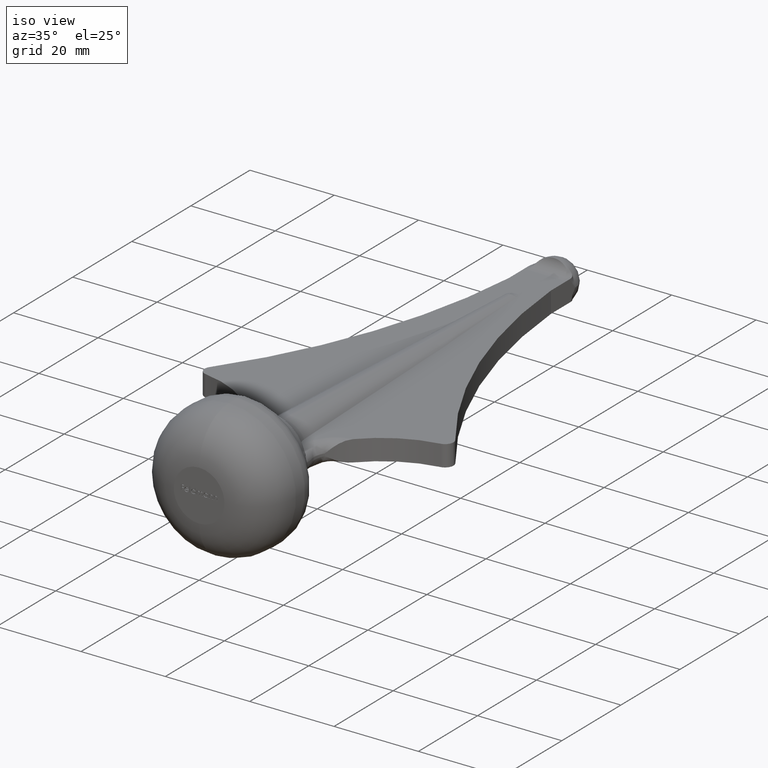
[diagram: clean part render]
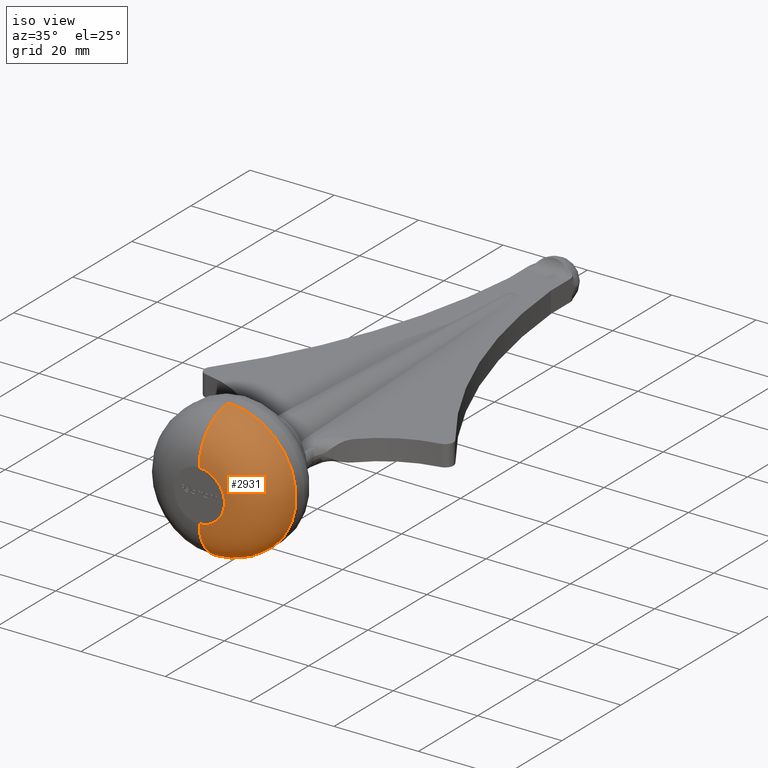
[diagram: tour spotlight — one face highlighted and labeled with its STEP entity id]
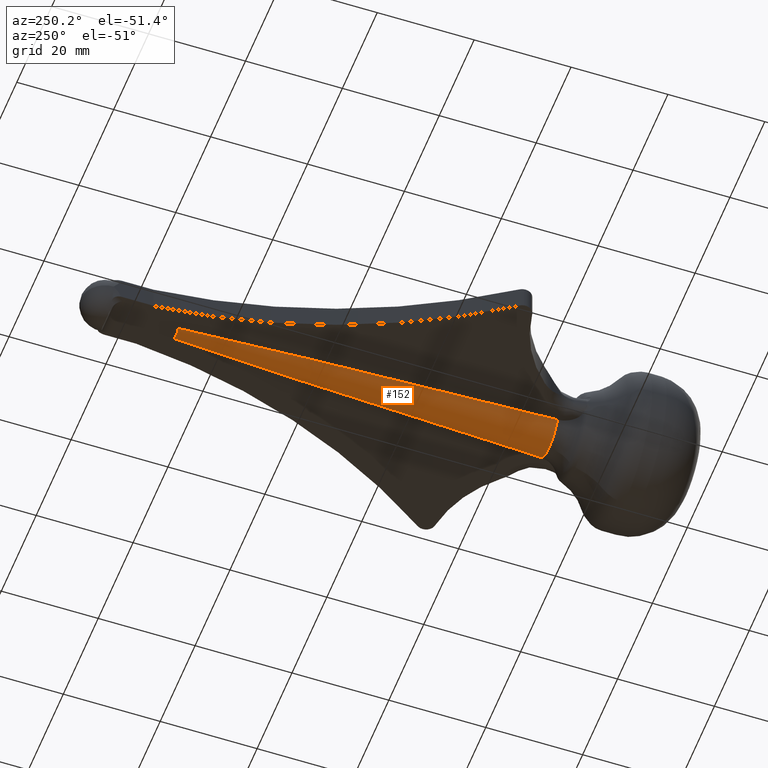
[diagram: tour spotlight — one face highlighted and labeled with its STEP entity id]
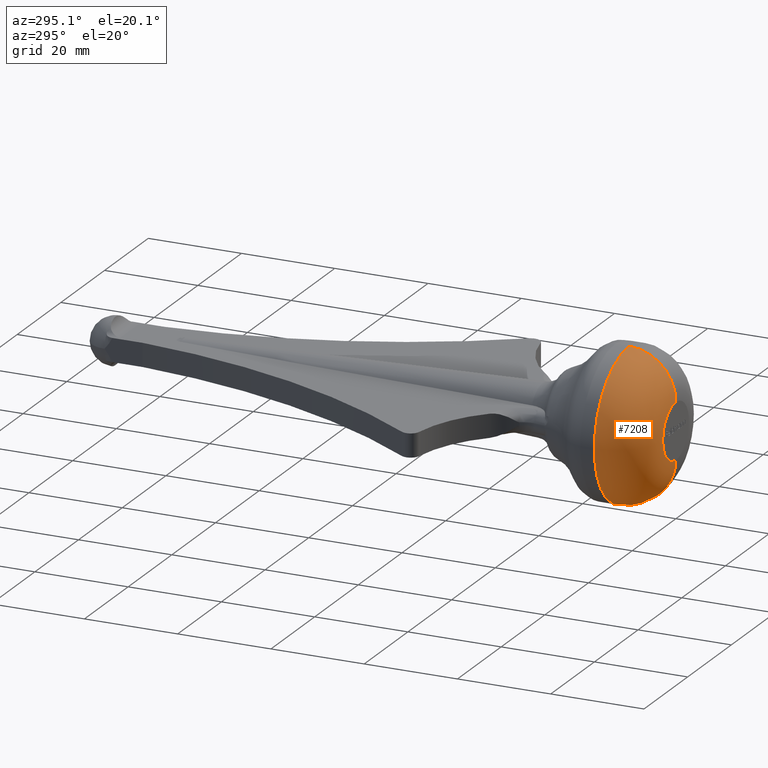
[diagram: tour spotlight — one face highlighted and labeled with its STEP entity id]
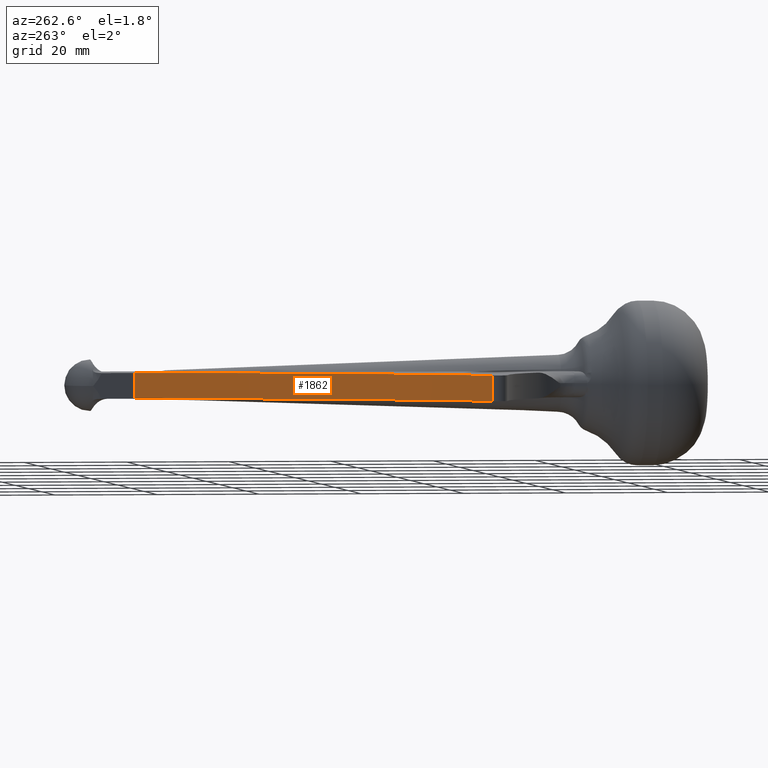
[diagram: tour spotlight — one face highlighted and labeled with its STEP entity id]
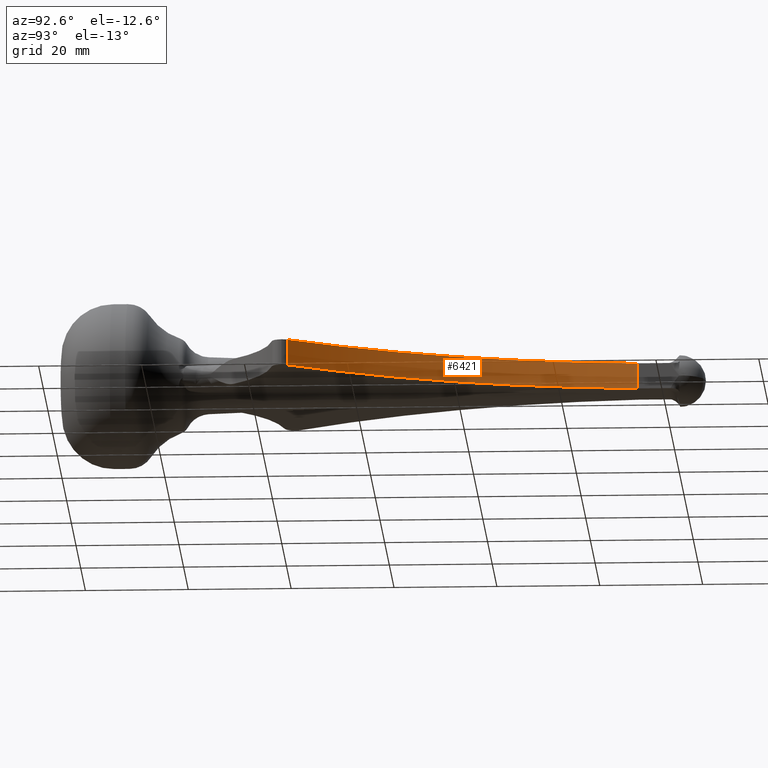
[diagram: tour spotlight — one face highlighted and labeled with its STEP entity id]
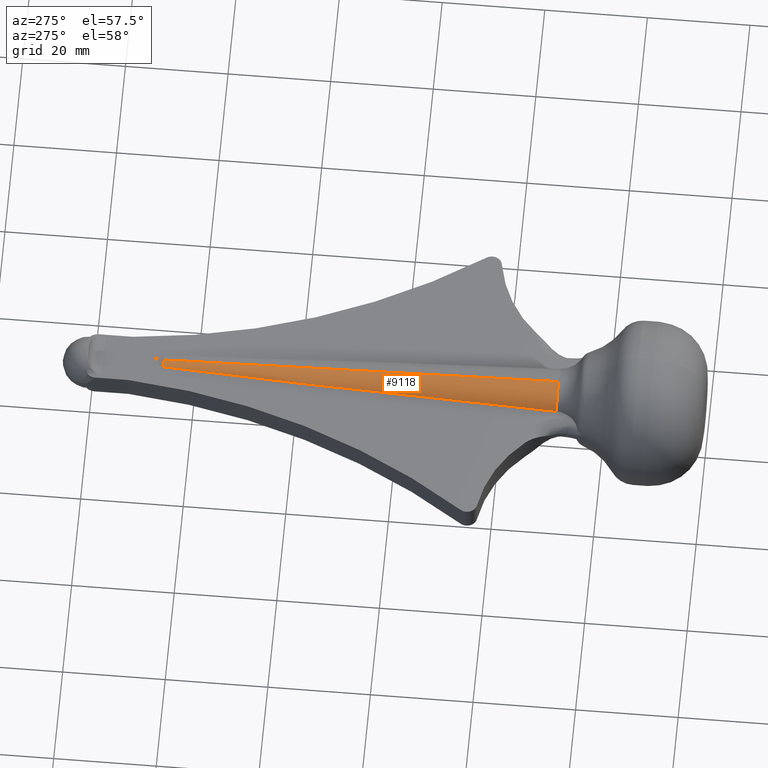
[diagram: tour spotlight — one face highlighted and labeled with its STEP entity id]
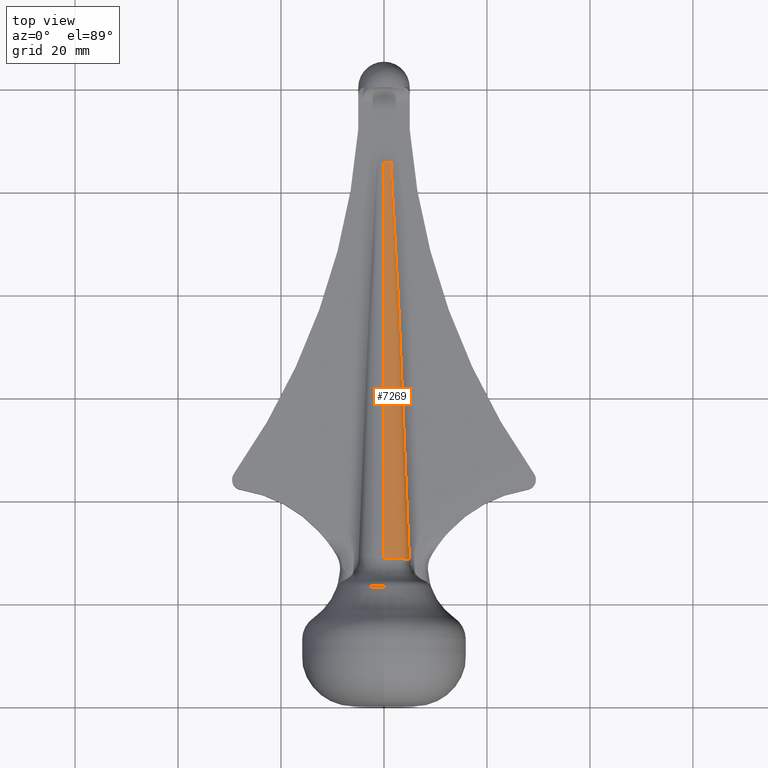
[diagram: tour spotlight — one face highlighted and labeled with its STEP entity id]
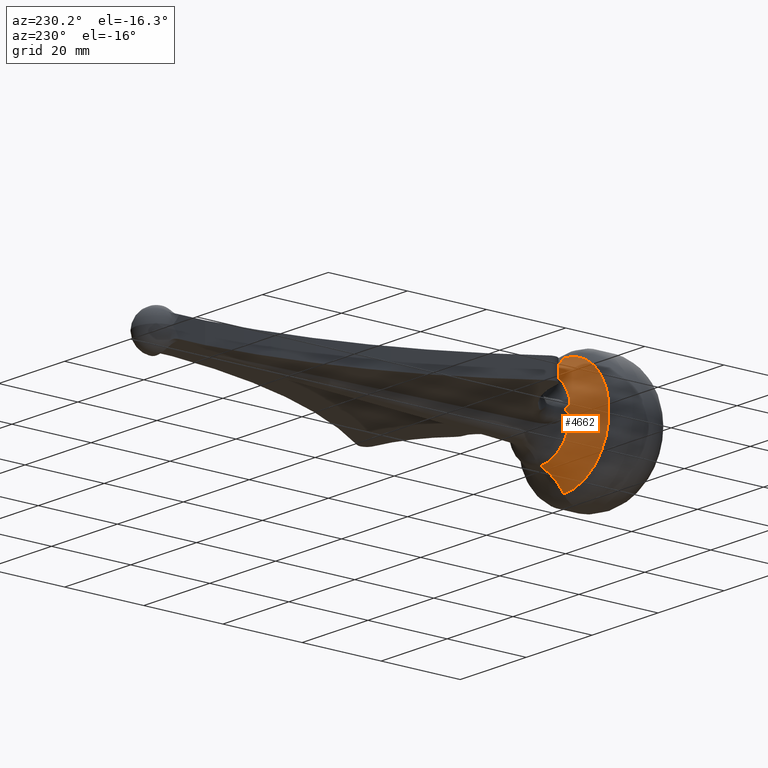
[diagram: tour spotlight — one face highlighted and labeled with its STEP entity id]
A machine part: a face-by-face anatomy tour. The part has 180 B-rep faces; the first image is the clean iso view, then the 8 largest visible faces are spotlighted one at a time (largest first), each with its STEP entity span.

Face 1 — iso view, entity #2931. In plain terms, the highlighted toroidal blend (fillet) surface has major radius 6 mm and minor (blend) radius 10 mm.
Definition (entity closure, byte-faithful):
#14 = ORIENTED_EDGE ( 'NONE', *, *, #10555, .F. ) ;
#508 = CARTESIAN_POINT ( 'NONE',  ( 1.959434878635765100E-015, 10.00000000000000000, -16.00000000000000000 ) ) ;
#734 = ORIENTED_EDGE ( 'NONE', *, *, #3064, .T. ) ;
#1049 = CARTESIAN_POINT ( 'NONE',  ( 7.347880794884119700E-016, 10.00000000000000000, 6.000000000000000000 ) ) ;
#1743 = ORIENTED_EDGE ( 'NONE', *, *, #7083, .F. ) ;
#1853 = TOROIDAL_SURFACE ( 'NONE', #10133, 6.000000000000000000, 10.00000000000000000 ) ;
#1972 = DIRECTION ( 'NONE',  ( -1.224646799147353200E-016, 0.0000000000000000000, -1.000000000000000000 ) ) ;
#2086 = VERTEX_POINT ( 'NONE', #508 ) ;
#2104 = VERTEX_POINT ( 'NONE', #11073 ) ;
#2139 = FACE_OUTER_BOUND ( 'NONE', #3447, .T. ) ;
#2314 = ORIENTED_EDGE ( 'NONE', *, *, #11392, .F. ) ;
#2931 = ADVANCED_FACE ( 'NONE', ( #2139 ), #1853, .T. ) ;
#3064 = EDGE_CURVE ( 'NONE', #4218, #2104, #4011, .T. ) ;
#3447 = EDGE_LOOP ( 'NONE', ( #14, #734, #1743, #2314 ) ) ;
#3552 = DIRECTION ( 'NONE',  ( 0.0000000000000000000, 0.0000000000000000000, -1.000000000000000000 ) ) ;
#3554 = DIRECTION ( 'NONE',  ( -1.000000000000000000, -0.0000000000000000000, -0.0000000000000000000 ) ) ;
#3817 = CIRCLE ( 'NONE', #8522, 10.00000000000000000 ) ;
#4011 = CIRCLE ( 'NONE', #10693, 10.00000000000000000 ) ;
#4218 = VERTEX_POINT ( 'NONE', #7774 ) ;
#4829 = CIRCLE ( 'NONE', #7538, 16.00000000000000000 ) ;
#5296 = CARTESIAN_POINT ( 'NONE',  ( 0.0000000000000000000, 0.0000000000000000000, 0.0000000000000000000 ) ) ;
#5383 = DIRECTION ( 'NONE',  ( -0.0000000000000000000, 1.000000000000000000, -0.0000000000000000000 ) ) ;
#5698 = AXIS2_PLACEMENT_3D ( 'NONE', #5296, #11302, #6202 ) ;
#6202 = DIRECTION ( 'NONE',  ( 0.0000000000000000000, 0.0000000000000000000, -1.000000000000000000 ) ) ;
#7083 = EDGE_CURVE ( 'NONE', #9681, #2104, #9247, .T. ) ;
#7390 = DIRECTION ( 'NONE',  ( 1.000000000000000000, 0.0000000000000000000, -1.224646799147353200E-016 ) ) ;
#7538 = AXIS2_PLACEMENT_3D ( 'NONE', #10553, #5383, #11385 ) ;
#7774 = CARTESIAN_POINT ( 'NONE',  ( 0.0000000000000000000, 10.00000000000000000, 16.00000000000000000 ) ) ;
#8522 = AXIS2_PLACEMENT_3D ( 'NONE', #8895, #3554, #9719 ) ;
#8892 = CARTESIAN_POINT ( 'NONE',  ( 0.0000000000000000000, 10.00000000000000000, 0.0000000000000000000 ) ) ;
#8895 = CARTESIAN_POINT ( 'NONE',  ( 0.0000000000000000000, 10.00000000000000000, -6.000000000000000000 ) ) ;
#9247 = CIRCLE ( 'NONE', #5698, 6.000000000000000000 ) ;
#9680 = DIRECTION ( 'NONE',  ( 0.0000000000000000000, -1.000000000000000000, 0.0000000000000000000 ) ) ;
#9681 = VERTEX_POINT ( 'NONE', #10984 ) ;
#9719 = DIRECTION ( 'NONE',  ( 0.0000000000000000000, 0.0000000000000000000, 1.000000000000000000 ) ) ;
#10133 = AXIS2_PLACEMENT_3D ( 'NONE', #8892, #9680, #3552 ) ;
#10553 = CARTESIAN_POINT ( 'NONE',  ( 0.0000000000000000000, 10.00000000000000000, 0.0000000000000000000 ) ) ;
#10555 = EDGE_CURVE ( 'NONE', #4218, #2086, #4829, .T. ) ;
#10693 = AXIS2_PLACEMENT_3D ( 'NONE', #1049, #7390, #1972 ) ;
#10984 = CARTESIAN_POINT ( 'NONE',  ( 0.0000000000000000000, 0.0000000000000000000, -6.000000000000000000 ) ) ;
#11073 = CARTESIAN_POINT ( 'NONE',  ( 1.347111479062088600E-015, 0.0000000000000000000, 6.000000000000000000 ) ) ;
#11302 = DIRECTION ( 'NONE',  ( 0.0000000000000000000, -1.000000000000000000, 0.0000000000000000000 ) ) ;
#11385 = DIRECTION ( 'NONE',  ( 0.0000000000000000000, 0.0000000000000000000, -1.000000000000000000 ) ) ;
#11392 = EDGE_CURVE ( 'NONE', #2086, #9681, #3817, .T. ) ;

Face 2 — auxiliary view, entity #152. In plain terms, the highlighted conical surface has half-angle 2 deg.
Definition (entity closure, byte-faithful):
#152 = ADVANCED_FACE ( 'NONE', ( #10063 ), #602, .T. ) ;
#277 = CARTESIAN_POINT ( 'NONE',  ( 2.129360400867848800, 92.86874431668863400, -2.500000000000000000 ) ) ;
#571 = CARTESIAN_POINT ( 'NONE',  ( 1.330671273816803600, 105.7173144408542200, -2.500000000000000000 ) ) ;
#602 = CONICAL_SURFACE ( 'NONE', #3858, 6.000000000000000900, 0.03490658503988663300 ) ;
#739 = CARTESIAN_POINT ( 'NONE',  ( -1.138701944923019800, 105.6250589457808200, -2.605828799408840700 ) ) ;
#1177 = CARTESIAN_POINT ( 'NONE',  ( 1.569177608762222200, 102.5082300580223100, -2.499999999999999100 ) ) ;
#1227 = B_SPLINE_CURVE_WITH_KNOTS ( 'NONE', 3,
 ( #7986, #8732, #8743, #7970, #7957, #8596, #8585, #8561, #8529, #8491 ),
 .UNSPECIFIED., .F., .F.,
 ( 4, 2, 2, 2, 4 ),
 ( 0.1646167444301771500, 0.1742068435375671000, 0.1837969426449570500, 0.2029771408597369800, 0.2413375372892968000 ),
 .UNSPECIFIED. ) ;
#1611 = EDGE_CURVE ( 'NONE', #3009, #7323, #1227, .T. ) ;
#2026 = CARTESIAN_POINT ( 'NONE',  ( -1.330671273816739400, 105.7173144408550900, -2.500000000000000000 ) ) ;
#2082 = CARTESIAN_POINT ( 'NONE',  ( 4.928568551160204000, 28.56293012340829000, -2.500000000000000000 ) ) ;
#2274 = DIRECTION ( 'NONE',  ( 0.0000000000000000000, 1.000000000000000000, 0.0000000000000000000 ) ) ;
#2573 = CARTESIAN_POINT ( 'NONE',  ( 0.0000000000000000000, 28.56293012340832500, 0.0000000000000000000 ) ) ;
#2594 = CARTESIAN_POINT ( 'NONE',  ( -0.4753960032752192500, 105.4716056343615400, -2.810243639970684700 ) ) ;
#3009 = VERTEX_POINT ( 'NONE', #5520 ) ;
#3480 = DIRECTION ( 'NONE',  ( 0.0000000000000000000, 0.0000000000000000000, 1.000000000000000000 ) ) ;
#3505 = CARTESIAN_POINT ( 'NONE',  ( 0.2371967415078502200, 105.4500121584773800, -2.841431234558574400 ) ) ;
#3858 = AXIS2_PLACEMENT_3D ( 'NONE', #7480, #7466, #7490 ) ;
#4054 = AXIS2_PLACEMENT_3D ( 'NONE', #7670, #2274, #8569 ) ;
#4186 = EDGE_LOOP ( 'NONE', ( #11250, #9783, #6214, #6798, #10594 ) ) ;
#4250 = VERTEX_POINT ( 'NONE', #571 ) ;
#4431 = CARTESIAN_POINT ( 'NONE',  ( 0.9255710208889230700, 105.5591710090953900, -2.692518522639702400 ) ) ;
#4769 = EDGE_CURVE ( 'NONE', #3009, #4250, #5399, .T. ) ;
#4851 = CARTESIAN_POINT ( 'NONE',  ( 3.068308221061435400, 73.58147783943989900, -2.499999999999999100 ) ) ;
#5316 = CARTESIAN_POINT ( 'NONE',  ( 1.330671273816803600, 105.7173144408542200, -2.500000000000000000 ) ) ;
#5387 = CIRCLE ( 'NONE', #4054, 5.526372043527775400 ) ;
#5399 = B_SPLINE_CURVE_WITH_KNOTS ( 'NONE', 3,
 ( #2026, #739, #7990, #2594, #8853, #3505, #9675, #4431, #10489, #5316 ),
 .UNSPECIFIED., .F., .F.,
 ( 4, 2, 2, 2, 4 ),
 ( 2.411007320254150300E-015, 0.0007095218121755244900, 0.001419043624348637900, 0.002128565436521751300, 0.002838087248694864600 ),
 .UNSPECIFIED. ) ;
#5520 = CARTESIAN_POINT ( 'NONE',  ( -1.330671273816739400, 105.7173144408550900, -2.500000000000000000 ) ) ;
#5730 = CARTESIAN_POINT ( 'NONE',  ( 2.296845112463824700, 89.65469678926223200, -2.500000000000000000 ) ) ;
#6117 = AXIS2_PLACEMENT_3D ( 'NONE', #2573, #8829, #3480 ) ;
#6214 = ORIENTED_EDGE ( 'NONE', *, *, #10897, .T. ) ;
#6572 = CARTESIAN_POINT ( 'NONE',  ( 4.424873845944095900, 41.42658154999881500, -2.499999999999999600 ) ) ;
#6645 = CARTESIAN_POINT ( 'NONE',  ( 1.764076072251363800, 99.29546918360152600, -2.500000000000000000 ) ) ;
#6798 = ORIENTED_EDGE ( 'NONE', *, *, #1611, .F. ) ;
#6996 = CARTESIAN_POINT ( 'NONE',  ( 0.0000000000000000000, 28.56293012340832500, -5.526372043527775400 ) ) ;
#7012 = B_SPLINE_CURVE_WITH_KNOTS ( 'NONE', 3,
 ( #2082, #6572, #10048, #4851, #10872, #5730, #277, #6645, #1177, #7528 ),
 .UNSPECIFIED., .F., .F.,
 ( 4, 2, 2, 2, 4 ),
 ( 0.06808949105091094400, 0.1067100199659009900, 0.1260202844233959700, 0.1356754166521434400, 0.1453305488808909200 ),
 .UNSPECIFIED. ) ;
#7323 = VERTEX_POINT ( 'NONE', #9672 ) ;
#7466 = DIRECTION ( 'NONE',  ( -0.0000000000000000000, -1.000000000000000000, -0.0000000000000000000 ) ) ;
#7480 = CARTESIAN_POINT ( 'NONE',  ( 0.0000000000000000000, 15.00000000000000000, 0.0000000000000000000 ) ) ;
#7490 = DIRECTION ( 'NONE',  ( 0.0000000000000000000, 0.0000000000000000000, 1.000000000000000000 ) ) ;
#7528 = CARTESIAN_POINT ( 'NONE',  ( 1.330671273816803600, 105.7173144408542200, -2.500000000000000000 ) ) ;
#7670 = CARTESIAN_POINT ( 'NONE',  ( 0.0000000000000000000, 28.56293012340832500, 0.0000000000000000000 ) ) ;
#7957 = CARTESIAN_POINT ( 'NONE',  ( -2.296831674157719000, 89.65496053653252800, -2.500000000000000000 ) ) ;
#7970 = CARTESIAN_POINT ( 'NONE',  ( -2.129346882812048800, 92.86898118978875500, -2.499999999999999600 ) ) ;
#7986 = CARTESIAN_POINT ( 'NONE',  ( -1.330671273816739400, 105.7173144408550900, -2.500000000000000000 ) ) ;
#7990 = CARTESIAN_POINT ( 'NONE',  ( -0.9254942425270631400, 105.5591862202208400, -2.692501584263283600 ) ) ;
#8017 = CARTESIAN_POINT ( 'NONE',  ( 4.928568551160204000, 28.56293012340829000, -2.500000000000000000 ) ) ;
#8066 = EDGE_CURVE ( 'NONE', #10561, #8459, #5387, .T. ) ;
#8459 = VERTEX_POINT ( 'NONE', #6996 ) ;
#8491 = CARTESIAN_POINT ( 'NONE',  ( -4.928568551160204000, 28.56293012340829000, -2.500000000000000000 ) ) ;
#8529 = CARTESIAN_POINT ( 'NONE',  ( -4.424877613599830900, 41.42648532939220000, -2.499999999999999600 ) ) ;
#8561 = CARTESIAN_POINT ( 'NONE',  ( -3.909043776192116800, 54.28954123123273200, -2.500000000000000000 ) ) ;
#8569 = DIRECTION ( 'NONE',  ( 0.0000000000000000000, 0.0000000000000000000, 1.000000000000000000 ) ) ;
#8585 = CARTESIAN_POINT ( 'NONE',  ( -3.068313073343853100, 73.58137093421478900, -2.500000000000000400 ) ) ;
#8596 = CARTESIAN_POINT ( 'NONE',  ( -2.777262385360014900, 80.01157285010732800, -2.500000000000000000 ) ) ;
#8732 = CARTESIAN_POINT ( 'NONE',  ( -1.569226523540618900, 102.5075719134432700, -2.499999999999999600 ) ) ;
#8743 = CARTESIAN_POINT ( 'NONE',  ( -1.764091459563191800, 99.29519942325281100, -2.500000000000000400 ) ) ;
#8829 = DIRECTION ( 'NONE',  ( 0.0000000000000000000, 1.000000000000000000, 0.0000000000000000000 ) ) ;
#8853 = CARTESIAN_POINT ( 'NONE',  ( -0.2375621965364726500, 105.4500343521582700, -2.841399928446117300 ) ) ;
#8917 = EDGE_CURVE ( 'NONE', #10561, #4250, #7012, .T. ) ;
#9672 = CARTESIAN_POINT ( 'NONE',  ( -4.928568551160204000, 28.56293012340829000, -2.500000000000000000 ) ) ;
#9675 = CARTESIAN_POINT ( 'NONE',  ( 0.4744977533721271300, 105.4714610576575200, -2.810441524412183400 ) ) ;
#9783 = ORIENTED_EDGE ( 'NONE', *, *, #8066, .T. ) ;
#10048 = CARTESIAN_POINT ( 'NONE',  ( 3.909034111414361900, 54.28977187930937700, -2.499999999999999600 ) ) ;
#10063 = FACE_OUTER_BOUND ( 'NONE', #4186, .T. ) ;
#10365 = CIRCLE ( 'NONE', #6117, 5.526372043527775400 ) ;
#10489 = CARTESIAN_POINT ( 'NONE',  ( 1.138710277799219300, 105.6250629503459800, -2.605824205662872700 ) ) ;
#10561 = VERTEX_POINT ( 'NONE', #8017 ) ;
#10594 = ORIENTED_EDGE ( 'NONE', *, *, #4769, .T. ) ;
#10872 = CARTESIAN_POINT ( 'NONE',  ( 2.777262519196558500, 80.01155818015759300, -2.499999999999999600 ) ) ;
#10897 = EDGE_CURVE ( 'NONE', #8459, #7323, #10365, .T. ) ;
#11250 = ORIENTED_EDGE ( 'NONE', *, *, #8917, .F. ) ;

Face 3 — auxiliary view, entity #7208. In plain terms, the highlighted toroidal blend (fillet) surface has major radius 6 mm and minor (blend) radius 10 mm.
Definition (entity closure, byte-faithful):
#184 = EDGE_CURVE ( 'NONE', #2104, #9681, #3034, .T. ) ;
#508 = CARTESIAN_POINT ( 'NONE',  ( 1.959434878635765100E-015, 10.00000000000000000, -16.00000000000000000 ) ) ;
#689 = CARTESIAN_POINT ( 'NONE',  ( 0.0000000000000000000, 10.00000000000000000, 0.0000000000000000000 ) ) ;
#1049 = CARTESIAN_POINT ( 'NONE',  ( 7.347880794884119700E-016, 10.00000000000000000, 6.000000000000000000 ) ) ;
#1601 = DIRECTION ( 'NONE',  ( 0.0000000000000000000, 0.0000000000000000000, -1.000000000000000000 ) ) ;
#1972 = DIRECTION ( 'NONE',  ( -1.224646799147353200E-016, 0.0000000000000000000, -1.000000000000000000 ) ) ;
#2086 = VERTEX_POINT ( 'NONE', #508 ) ;
#2104 = VERTEX_POINT ( 'NONE', #11073 ) ;
#2835 = ORIENTED_EDGE ( 'NONE', *, *, #184, .F. ) ;
#3034 = CIRCLE ( 'NONE', #5046, 6.000000000000000000 ) ;
#3064 = EDGE_CURVE ( 'NONE', #4218, #2104, #4011, .T. ) ;
#3244 = CIRCLE ( 'NONE', #3950, 16.00000000000000000 ) ;
#3554 = DIRECTION ( 'NONE',  ( -1.000000000000000000, -0.0000000000000000000, -0.0000000000000000000 ) ) ;
#3817 = CIRCLE ( 'NONE', #8522, 10.00000000000000000 ) ;
#3950 = AXIS2_PLACEMENT_3D ( 'NONE', #689, #7030, #1601 ) ;
#4011 = CIRCLE ( 'NONE', #10693, 10.00000000000000000 ) ;
#4218 = VERTEX_POINT ( 'NONE', #7774 ) ;
#5046 = AXIS2_PLACEMENT_3D ( 'NONE', #7309, #7257, #7267 ) ;
#5414 = DIRECTION ( 'NONE',  ( 0.0000000000000000000, -1.000000000000000000, 0.0000000000000000000 ) ) ;
#5640 = EDGE_LOOP ( 'NONE', ( #8468, #6151, #7837, #2835 ) ) ;
#6151 = ORIENTED_EDGE ( 'NONE', *, *, #10484, .F. ) ;
#6324 = CARTESIAN_POINT ( 'NONE',  ( 0.0000000000000000000, 10.00000000000000000, 0.0000000000000000000 ) ) ;
#7030 = DIRECTION ( 'NONE',  ( -0.0000000000000000000, 1.000000000000000000, -0.0000000000000000000 ) ) ;
#7208 = ADVANCED_FACE ( 'NONE', ( #8475 ), #10657, .T. ) ;
#7257 = DIRECTION ( 'NONE',  ( 0.0000000000000000000, -1.000000000000000000, 0.0000000000000000000 ) ) ;
#7267 = DIRECTION ( 'NONE',  ( 0.0000000000000000000, 0.0000000000000000000, -1.000000000000000000 ) ) ;
#7309 = CARTESIAN_POINT ( 'NONE',  ( 0.0000000000000000000, 0.0000000000000000000, 0.0000000000000000000 ) ) ;
#7390 = DIRECTION ( 'NONE',  ( 1.000000000000000000, 0.0000000000000000000, -1.224646799147353200E-016 ) ) ;
#7774 = CARTESIAN_POINT ( 'NONE',  ( 0.0000000000000000000, 10.00000000000000000, 16.00000000000000000 ) ) ;
#7837 = ORIENTED_EDGE ( 'NONE', *, *, #11392, .T. ) ;
#8468 = ORIENTED_EDGE ( 'NONE', *, *, #3064, .F. ) ;
#8475 = FACE_OUTER_BOUND ( 'NONE', #5640, .T. ) ;
#8522 = AXIS2_PLACEMENT_3D ( 'NONE', #8895, #3554, #9719 ) ;
#8895 = CARTESIAN_POINT ( 'NONE',  ( 0.0000000000000000000, 10.00000000000000000, -6.000000000000000000 ) ) ;
#9681 = VERTEX_POINT ( 'NONE', #10984 ) ;
#9719 = DIRECTION ( 'NONE',  ( 0.0000000000000000000, 0.0000000000000000000, 1.000000000000000000 ) ) ;
#10484 = EDGE_CURVE ( 'NONE', #2086, #4218, #3244, .T. ) ;
#10548 = DIRECTION ( 'NONE',  ( 0.0000000000000000000, 0.0000000000000000000, -1.000000000000000000 ) ) ;
#10657 = TOROIDAL_SURFACE ( 'NONE', #10877, 6.000000000000000000, 10.00000000000000000 ) ;
#10693 = AXIS2_PLACEMENT_3D ( 'NONE', #1049, #7390, #1972 ) ;
#10877 = AXIS2_PLACEMENT_3D ( 'NONE', #6324, #5414, #10548 ) ;
#10984 = CARTESIAN_POINT ( 'NONE',  ( 0.0000000000000000000, 0.0000000000000000000, -6.000000000000000000 ) ) ;
#11073 = CARTESIAN_POINT ( 'NONE',  ( 1.347111479062088600E-015, 0.0000000000000000000, 6.000000000000000000 ) ) ;
#11392 = EDGE_CURVE ( 'NONE', #2086, #9681, #3817, .T. ) ;

Face 4 — auxiliary view, entity #1862. In plain terms, the highlighted cylindrical surface (partial cylindrical patch) has radius 134.68 mm, axis along (0, 0, 1).
Definition (entity closure, byte-faithful):
#134 = DIRECTION ( 'NONE',  ( 0.0000000000000000000, 0.0000000000000000000, 1.000000000000000000 ) ) ;
#210 = ORIENTED_EDGE ( 'NONE', *, *, #5935, .F. ) ;
#389 = VECTOR ( 'NONE', #5426, 1000.000000000000000 ) ;
#1544 = VERTEX_POINT ( 'NONE', #8967 ) ;
#1612 = EDGE_CURVE ( 'NONE', #1544, #10993, #8672, .T. ) ;
#1716 = DIRECTION ( 'NONE',  ( 0.0000000000000000000, 0.0000000000000000000, 1.000000000000000000 ) ) ;
#1862 = ADVANCED_FACE ( 'NONE', ( #7554 ), #4908, .F. ) ;
#1967 = ORIENTED_EDGE ( 'NONE', *, *, #3126, .T. ) ;
#2067 = AXIS2_PLACEMENT_3D ( 'NONE', #8009, #1716, #8051 ) ;
#2157 = AXIS2_PLACEMENT_3D ( 'NONE', #8391, #8383, #8360 ) ;
#2165 = EDGE_LOOP ( 'NONE', ( #1967, #210, #11276, #5286 ) ) ;
#3126 = EDGE_CURVE ( 'NONE', #10993, #4392, #9009, .T. ) ;
#4200 = CIRCLE ( 'NONE', #10965, 134.6797842850864700 ) ;
#4392 = VERTEX_POINT ( 'NONE', #9324 ) ;
#4550 = CARTESIAN_POINT ( 'NONE',  ( -5.000000000000032000, 112.0000000000000100, -2.500000000000000000 ) ) ;
#4908 = CYLINDRICAL_SURFACE ( 'NONE', #2067, 134.6797842850864700 ) ;
#5059 = CARTESIAN_POINT ( 'NONE',  ( -139.2548069504312900, 122.6907018375717500, 2.500000000000000000 ) ) ;
#5222 = LINE ( 'NONE', #4550, #389 ) ;
#5286 = ORIENTED_EDGE ( 'NONE', *, *, #1612, .T. ) ;
#5426 = DIRECTION ( 'NONE',  ( 0.0000000000000000000, 0.0000000000000000000, 1.000000000000000000 ) ) ;
#5819 = VECTOR ( 'NONE', #134, 1000.000000000000000 ) ;
#5935 = EDGE_CURVE ( 'NONE', #8975, #4392, #4200, .T. ) ;
#5963 = DIRECTION ( 'NONE',  ( -1.000000000000000000, 0.0000000000000000000, 0.0000000000000000000 ) ) ;
#7554 = FACE_OUTER_BOUND ( 'NONE', #2165, .T. ) ;
#8009 = CARTESIAN_POINT ( 'NONE',  ( -139.2548069504312900, 122.6907018375717500, -2.500000000000000000 ) ) ;
#8051 = DIRECTION ( 'NONE',  ( 1.000000000000000000, 0.0000000000000000000, 0.0000000000000000000 ) ) ;
#8360 = DIRECTION ( 'NONE',  ( -1.000000000000000000, 0.0000000000000000000, 0.0000000000000000000 ) ) ;
#8383 = DIRECTION ( 'NONE',  ( -0.0000000000000000000, -0.0000000000000000000, -1.000000000000000000 ) ) ;
#8391 = CARTESIAN_POINT ( 'NONE',  ( -139.2548069504312900, 122.6907018375717500, -2.500000000000000000 ) ) ;
#8672 = CIRCLE ( 'NONE', #2157, 134.6797842850864700 ) ;
#8967 = CARTESIAN_POINT ( 'NONE',  ( -5.000000000000032000, 112.0000000000000100, -2.500000000000000000 ) ) ;
#8975 = VERTEX_POINT ( 'NONE', #10864 ) ;
#9009 = LINE ( 'NONE', #10745, #5819 ) ;
#9324 = CARTESIAN_POINT ( 'NONE',  ( -29.13527924096418100, 45.15146072623942100, 2.500000000000000000 ) ) ;
#9806 = EDGE_CURVE ( 'NONE', #1544, #8975, #5222, .T. ) ;
#10745 = CARTESIAN_POINT ( 'NONE',  ( -29.13527924096418100, 45.15146072623942100, -2.500000000000000000 ) ) ;
#10864 = CARTESIAN_POINT ( 'NONE',  ( -5.000000000000032000, 112.0000000000000100, 2.500000000000000000 ) ) ;
#10965 = AXIS2_PLACEMENT_3D ( 'NONE', #5059, #11082, #5963 ) ;
#10993 = VERTEX_POINT ( 'NONE', #11336 ) ;
#11082 = DIRECTION ( 'NONE',  ( -0.0000000000000000000, -0.0000000000000000000, -1.000000000000000000 ) ) ;
#11276 = ORIENTED_EDGE ( 'NONE', *, *, #9806, .F. ) ;
#11336 = CARTESIAN_POINT ( 'NONE',  ( -29.13527924096418100, 45.15146072623942100, -2.500000000000000000 ) ) ;

Face 5 — auxiliary view, entity #6421. In plain terms, the highlighted cylindrical surface (partial cylindrical patch) has radius 134.68 mm, axis along (0, 0, 1).
Definition (entity closure, byte-faithful):
#89 = CARTESIAN_POINT ( 'NONE',  ( 5.000000000000032000, 112.0000000000000100, 2.500000000000000000 ) ) ;
#482 = LINE ( 'NONE', #10601, #9706 ) ;
#675 = LINE ( 'NONE', #783, #5523 ) ;
#783 = CARTESIAN_POINT ( 'NONE',  ( 29.13527924096418800, 45.15146072623935700, -2.500000000000000000 ) ) ;
#1155 = EDGE_CURVE ( 'NONE', #10575, #6588, #482, .T. ) ;
#1365 = ORIENTED_EDGE ( 'NONE', *, *, #9762, .F. ) ;
#1540 = CIRCLE ( 'NONE', #9784, 134.6797842850864700 ) ;
#3225 = VERTEX_POINT ( 'NONE', #3869 ) ;
#3239 = DIRECTION ( 'NONE',  ( 0.0000000000000000000, 0.0000000000000000000, 1.000000000000000000 ) ) ;
#3649 = DIRECTION ( 'NONE',  ( 0.0000000000000000000, 0.0000000000000000000, 1.000000000000000000 ) ) ;
#3869 = CARTESIAN_POINT ( 'NONE',  ( 29.13527924096418800, 45.15146072623935700, 2.500000000000000000 ) ) ;
#3940 = ORIENTED_EDGE ( 'NONE', *, *, #7213, .F. ) ;
#4911 = DIRECTION ( 'NONE',  ( 0.0000000000000000000, 0.0000000000000000000, 1.000000000000000000 ) ) ;
#5523 = VECTOR ( 'NONE', #8921, 1000.000000000000000 ) ;
#5888 = EDGE_CURVE ( 'NONE', #6588, #3225, #6858, .T. ) ;
#6421 = ADVANCED_FACE ( 'NONE', ( #6992 ), #6443, .F. ) ;
#6443 = CYLINDRICAL_SURFACE ( 'NONE', #8893, 134.6797842850864700 ) ;
#6565 = CARTESIAN_POINT ( 'NONE',  ( 139.2548069504312900, 122.6907018375717500, -2.500000000000000000 ) ) ;
#6588 = VERTEX_POINT ( 'NONE', #89 ) ;
#6858 = CIRCLE ( 'NONE', #7006, 134.6797842850864700 ) ;
#6865 = ORIENTED_EDGE ( 'NONE', *, *, #5888, .T. ) ;
#6992 = FACE_OUTER_BOUND ( 'NONE', #8912, .T. ) ;
#7006 = AXIS2_PLACEMENT_3D ( 'NONE', #8613, #3239, #9441 ) ;
#7213 = EDGE_CURVE ( 'NONE', #10575, #9820, #1540, .T. ) ;
#8613 = CARTESIAN_POINT ( 'NONE',  ( 139.2548069504312900, 122.6907018375717500, 2.500000000000000000 ) ) ;
#8893 = AXIS2_PLACEMENT_3D ( 'NONE', #6565, #4911, #10931 ) ;
#8912 = EDGE_LOOP ( 'NONE', ( #10392, #6865, #1365, #3940 ) ) ;
#8921 = DIRECTION ( 'NONE',  ( 0.0000000000000000000, 0.0000000000000000000, 1.000000000000000000 ) ) ;
#8977 = CARTESIAN_POINT ( 'NONE',  ( 139.2548069504312900, 122.6907018375717500, -2.500000000000000000 ) ) ;
#9441 = DIRECTION ( 'NONE',  ( 1.000000000000000000, 0.0000000000000000000, 0.0000000000000000000 ) ) ;
#9706 = VECTOR ( 'NONE', #10486, 1000.000000000000000 ) ;
#9762 = EDGE_CURVE ( 'NONE', #9820, #3225, #675, .T. ) ;
#9774 = CARTESIAN_POINT ( 'NONE',  ( 5.000000000000032000, 112.0000000000000100, -2.500000000000000000 ) ) ;
#9784 = AXIS2_PLACEMENT_3D ( 'NONE', #8977, #3649, #9796 ) ;
#9796 = DIRECTION ( 'NONE',  ( 1.000000000000000000, 0.0000000000000000000, 0.0000000000000000000 ) ) ;
#9820 = VERTEX_POINT ( 'NONE', #11427 ) ;
#10392 = ORIENTED_EDGE ( 'NONE', *, *, #1155, .T. ) ;
#10486 = DIRECTION ( 'NONE',  ( 0.0000000000000000000, 0.0000000000000000000, 1.000000000000000000 ) ) ;
#10575 = VERTEX_POINT ( 'NONE', #9774 ) ;
#10601 = CARTESIAN_POINT ( 'NONE',  ( 5.000000000000032000, 112.0000000000000100, -2.500000000000000000 ) ) ;
#10931 = DIRECTION ( 'NONE',  ( 1.000000000000000000, 0.0000000000000000000, 0.0000000000000000000 ) ) ;
#11427 = CARTESIAN_POINT ( 'NONE',  ( 29.13527924096418800, 45.15146072623935700, -2.500000000000000000 ) ) ;

Face 6 — auxiliary view, entity #9118. In plain terms, the highlighted conical surface has half-angle 2 deg.
Definition (entity closure, byte-faithful):
#282 = B_SPLINE_CURVE_WITH_KNOTS ( 'NONE', 3,
 ( #9811, #9790, #9799, #9770, #9759, #9747 ),
 .UNSPECIFIED., .F., .F.,
 ( 4, 2, 4 ),
 ( 0.001419225680879812300, 0.002128656464786153600, 0.002838087248692495000 ),
 .UNSPECIFIED. ) ;
#428 = LINE ( 'NONE', #10060, #9396 ) ;
#544 = DIRECTION ( 'NONE',  ( 0.0000000000000000000, 0.0000000000000000000, 1.000000000000000000 ) ) ;
#1304 = CARTESIAN_POINT ( 'NONE',  ( -2.129346882812059400, 92.86898118978857000, 2.499999999999999600 ) ) ;
#1374 = EDGE_CURVE ( 'NONE', #1452, #9435, #282, .T. ) ;
#1452 = VERTEX_POINT ( 'NONE', #10087 ) ;
#1739 = EDGE_LOOP ( 'NONE', ( #7277, #6063, #7124, #4412 ) ) ;
#1929 = DIRECTION ( 'NONE',  ( 0.0000000000000000000, 1.000000000000000000, 0.0000000000000000000 ) ) ;
#2238 = CARTESIAN_POINT ( 'NONE',  ( -2.777262385360021600, 80.01157285010714300, 2.499999999999999600 ) ) ;
#2678 = VERTEX_POINT ( 'NONE', #5432 ) ;
#2987 = AXIS2_PLACEMENT_3D ( 'NONE', #5983, #5949, #544 ) ;
#3146 = CARTESIAN_POINT ( 'NONE',  ( -3.909043776192118600, 54.28954123123265400, 2.500000000000000000 ) ) ;
#3875 = EDGE_CURVE ( 'NONE', #1452, #9415, #428, .T. ) ;
#4045 = CARTESIAN_POINT ( 'NONE',  ( -1.569226523540632000, 102.5075719134430700, 2.500000000000000000 ) ) ;
#4085 = CARTESIAN_POINT ( 'NONE',  ( -4.928568551160204000, 28.56293012340829000, 2.500000000000000000 ) ) ;
#4380 = EDGE_CURVE ( 'NONE', #9435, #2678, #7273, .T. ) ;
#4412 = ORIENTED_EDGE ( 'NONE', *, *, #6559, .T. ) ;
#5384 = FACE_OUTER_BOUND ( 'NONE', #1739, .T. ) ;
#5432 = CARTESIAN_POINT ( 'NONE',  ( -4.928568551160204000, 28.56293012340829000, 2.500000000000000000 ) ) ;
#5949 = DIRECTION ( 'NONE',  ( -0.0000000000000000000, -1.000000000000000000, -0.0000000000000000000 ) ) ;
#5983 = CARTESIAN_POINT ( 'NONE',  ( 0.0000000000000000000, 15.00000000000000000, 0.0000000000000000000 ) ) ;
#6063 = ORIENTED_EDGE ( 'NONE', *, *, #1374, .T. ) ;
#6559 = EDGE_CURVE ( 'NONE', #2678, #9415, #10952, .T. ) ;
#6753 = CARTESIAN_POINT ( 'NONE',  ( -1.764091459563204000, 99.29519942325261200, 2.500000000000000000 ) ) ;
#7124 = ORIENTED_EDGE ( 'NONE', *, *, #4380, .T. ) ;
#7273 = B_SPLINE_CURVE_WITH_KNOTS ( 'NONE', 3,
 ( #7599, #4045, #6753, #1304, #7637, #2238, #8541, #3146, #9361, #4085 ),
 .UNSPECIFIED., .F., .F.,
 ( 4, 2, 2, 2, 4 ),
 ( 0.1646167444301773800, 0.1742068435375673200, 0.1837969426449572700, 0.2029771408597371200, 0.2413375372892968000 ),
 .UNSPECIFIED. ) ;
#7277 = ORIENTED_EDGE ( 'NONE', *, *, #3875, .F. ) ;
#7350 = CARTESIAN_POINT ( 'NONE',  ( 0.0000000000000000000, 28.56293012340829700, 0.0000000000000000000 ) ) ;
#7599 = CARTESIAN_POINT ( 'NONE',  ( -1.330671273816755900, 105.7173144408548800, 2.500000000000000000 ) ) ;
#7637 = CARTESIAN_POINT ( 'NONE',  ( -2.296831674157728400, 89.65496053653238600, 2.500000000000000400 ) ) ;
#8267 = DIRECTION ( 'NONE',  ( 0.0000000000000000000, 0.0000000000000000000, 1.000000000000000000 ) ) ;
#8320 = CARTESIAN_POINT ( 'NONE',  ( 0.0000000000000000000, 28.56293012340829700, 5.526372043527777200 ) ) ;
#8541 = CARTESIAN_POINT ( 'NONE',  ( -3.068313073343857900, 73.58137093421466100, 2.499999999999999600 ) ) ;
#9118 = ADVANCED_FACE ( 'NONE', ( #5384 ), #9755, .T. ) ;
#9361 = CARTESIAN_POINT ( 'NONE',  ( -4.424877613599831800, 41.42648532939216500, 2.499999999999999600 ) ) ;
#9396 = VECTOR ( 'NONE', #10885, 1000.000000000000100 ) ;
#9415 = VERTEX_POINT ( 'NONE', #8320 ) ;
#9435 = VERTEX_POINT ( 'NONE', #9967 ) ;
#9747 = CARTESIAN_POINT ( 'NONE',  ( -1.330671273816755900, 105.7173144408548800, 2.500000000000000000 ) ) ;
#9755 = CONICAL_SURFACE ( 'NONE', #2987, 6.000000000000000900, 0.03490658503988663300 ) ;
#9759 = CARTESIAN_POINT ( 'NONE',  ( -1.138734905484579000, 105.6250747857741300, 2.605810628919625200 ) ) ;
#9770 = CARTESIAN_POINT ( 'NONE',  ( -0.9256252312978289200, 105.5591879276135800, 2.692496518968195300 ) ) ;
#9790 = CARTESIAN_POINT ( 'NONE',  ( -0.2373479418862792800, 105.4500232510468200, 2.841415587526969300 ) ) ;
#9799 = CARTESIAN_POINT ( 'NONE',  ( -0.4746171532059901300, 105.4714778996261200, 2.810418138560502000 ) ) ;
#9811 = CARTESIAN_POINT ( 'NONE',  ( -7.193837922183095800E-016, 105.4500232510468200, 2.841415587526969300 ) ) ;
#9967 = CARTESIAN_POINT ( 'NONE',  ( -1.330671273816755900, 105.7173144408548800, 2.500000000000000000 ) ) ;
#10060 = CARTESIAN_POINT ( 'NONE',  ( 0.0000000000000000000, 15.00000000000000000, 6.000000000000000900 ) ) ;
#10087 = CARTESIAN_POINT ( 'NONE',  ( -7.193837922183095800E-016, 105.4500232510468200, 2.841415587526969300 ) ) ;
#10536 = AXIS2_PLACEMENT_3D ( 'NONE', #7350, #1929, #8267 ) ;
#10885 = DIRECTION ( 'NONE',  ( 0.0000000000000000000, -0.9993908270190956500, 0.03489949670250100400 ) ) ;
#10952 = CIRCLE ( 'NONE', #10536, 5.526372043527776300 ) ;

Face 7 — top view, entity #7269. In plain terms, the highlighted conical surface has half-angle 2 deg.
Definition (entity closure, byte-faithful):
#428 = LINE ( 'NONE', #10060, #9396 ) ;
#490 = CARTESIAN_POINT ( 'NONE',  ( 1.138677316171528500, 105.6250471098400700, 2.605842376740028900 ) ) ;
#652 = VERTEX_POINT ( 'NONE', #5850 ) ;
#1397 = CARTESIAN_POINT ( 'NONE',  ( 0.9254395639069629100, 105.5591692299542900, 2.692523685623211100 ) ) ;
#1452 = VERTEX_POINT ( 'NONE', #10087 ) ;
#2052 = AXIS2_PLACEMENT_3D ( 'NONE', #5060, #11084, #5964 ) ;
#2338 = CARTESIAN_POINT ( 'NONE',  ( 0.2374088509189964400, 105.4500232510468200, 2.841415587526969800 ) ) ;
#2351 = CARTESIAN_POINT ( 'NONE',  ( 3.909034111414301900, 54.28977187931089800, 2.500000000000000000 ) ) ;
#2543 = ORIENTED_EDGE ( 'NONE', *, *, #10340, .T. ) ;
#2816 = CARTESIAN_POINT ( 'NONE',  ( 0.0000000000000000000, 15.00000000000000000, 0.0000000000000000000 ) ) ;
#3172 = B_SPLINE_CURVE_WITH_KNOTS ( 'NONE', 3,
 ( #9412, #490, #1397, #7730, #2338, #8619 ),
 .UNSPECIFIED., .F., .F.,
 ( 4, 2, 4 ),
 ( 6.063921392298098400E-015, 0.0007096128404429381000, 0.001419225680879812300 ),
 .UNSPECIFIED. ) ;
#3261 = CARTESIAN_POINT ( 'NONE',  ( 2.777262519196418600, 80.01155818016063400, 2.500000000000000000 ) ) ;
#3406 = FACE_OUTER_BOUND ( 'NONE', #9611, .T. ) ;
#3875 = EDGE_CURVE ( 'NONE', #1452, #9415, #428, .T. ) ;
#4196 = CARTESIAN_POINT ( 'NONE',  ( 2.129360400867648100, 92.86874431669234300, 2.499999999999999600 ) ) ;
#5009 = ORIENTED_EDGE ( 'NONE', *, *, #6876, .T. ) ;
#5060 = CARTESIAN_POINT ( 'NONE',  ( 0.0000000000000000000, 28.56293012340829700, 0.0000000000000000000 ) ) ;
#5081 = CARTESIAN_POINT ( 'NONE',  ( 1.569177608761948500, 102.5082300580266300, 2.500000000000000000 ) ) ;
#5290 = VERTEX_POINT ( 'NONE', #5810 ) ;
#5810 = CARTESIAN_POINT ( 'NONE',  ( 1.330671273816468800, 105.7173144408587300, 2.500000000000000000 ) ) ;
#5850 = CARTESIAN_POINT ( 'NONE',  ( 4.928568551160204000, 28.56293012340829000, 2.500000000000000000 ) ) ;
#5964 = DIRECTION ( 'NONE',  ( 0.0000000000000000000, 0.0000000000000000000, 1.000000000000000000 ) ) ;
#6017 = DIRECTION ( 'NONE',  ( 0.0000000000000000000, 0.0000000000000000000, 1.000000000000000000 ) ) ;
#6521 = B_SPLINE_CURVE_WITH_KNOTS ( 'NONE', 3,
 ( #10927, #6853, #2351, #8634, #3261, #9460, #4196, #10269, #5081, #11106 ),
 .UNSPECIFIED., .F., .F.,
 ( 4, 2, 2, 2, 4 ),
 ( 0.06808949105091094400, 0.1067100199659031800, 0.1260202844233993000, 0.1356754166521473800, 0.1453305488808954400 ),
 .UNSPECIFIED. ) ;
#6853 = CARTESIAN_POINT ( 'NONE',  ( 4.424873845944067500, 41.42658154999956100, 2.499999999999999600 ) ) ;
#6876 = EDGE_CURVE ( 'NONE', #9415, #652, #10184, .T. ) ;
#7269 = ADVANCED_FACE ( 'NONE', ( #3406 ), #7914, .T. ) ;
#7730 = CARTESIAN_POINT ( 'NONE',  ( 0.4752774443319782700, 105.4715889183264600, 2.810266853153440300 ) ) ;
#7914 = CONICAL_SURFACE ( 'NONE', #11437, 6.000000000000000900, 0.03490658503988663300 ) ;
#8320 = CARTESIAN_POINT ( 'NONE',  ( 0.0000000000000000000, 28.56293012340829700, 5.526372043527777200 ) ) ;
#8619 = CARTESIAN_POINT ( 'NONE',  ( -7.193837922183095800E-016, 105.4500232510468200, 2.841415587526969300 ) ) ;
#8634 = CARTESIAN_POINT ( 'NONE',  ( 3.068308221061317700, 73.58147783944254200, 2.499999999999999600 ) ) ;
#9112 = EDGE_CURVE ( 'NONE', #652, #5290, #6521, .T. ) ;
#9283 = ORIENTED_EDGE ( 'NONE', *, *, #3875, .T. ) ;
#9396 = VECTOR ( 'NONE', #10885, 1000.000000000000100 ) ;
#9412 = CARTESIAN_POINT ( 'NONE',  ( 1.330671273816468800, 105.7173144408587300, 2.500000000000000000 ) ) ;
#9415 = VERTEX_POINT ( 'NONE', #8320 ) ;
#9460 = CARTESIAN_POINT ( 'NONE',  ( 2.296845112463638600, 89.65469678926581300, 2.499999999999999600 ) ) ;
#9611 = EDGE_LOOP ( 'NONE', ( #2543, #9283, #5009, #10587 ) ) ;
#10060 = CARTESIAN_POINT ( 'NONE',  ( 0.0000000000000000000, 15.00000000000000000, 6.000000000000000900 ) ) ;
#10087 = CARTESIAN_POINT ( 'NONE',  ( -7.193837922183095800E-016, 105.4500232510468200, 2.841415587526969300 ) ) ;
#10184 = CIRCLE ( 'NONE', #2052, 5.526372043527776300 ) ;
#10269 = CARTESIAN_POINT ( 'NONE',  ( 1.764076072251116600, 99.29546918360563300, 2.500000000000000000 ) ) ;
#10340 = EDGE_CURVE ( 'NONE', #5290, #1452, #3172, .T. ) ;
#10587 = ORIENTED_EDGE ( 'NONE', *, *, #9112, .T. ) ;
#10885 = DIRECTION ( 'NONE',  ( 0.0000000000000000000, -0.9993908270190956500, 0.03489949670250100400 ) ) ;
#10927 = CARTESIAN_POINT ( 'NONE',  ( 4.928568551160204000, 28.56293012340829000, 2.500000000000000000 ) ) ;
#11084 = DIRECTION ( 'NONE',  ( 0.0000000000000000000, 1.000000000000000000, 0.0000000000000000000 ) ) ;
#11106 = CARTESIAN_POINT ( 'NONE',  ( 1.330671273816468800, 105.7173144408587300, 2.500000000000000000 ) ) ;
#11437 = AXIS2_PLACEMENT_3D ( 'NONE', #2816, #11450, #6017 ) ;
#11450 = DIRECTION ( 'NONE',  ( -0.0000000000000000000, -1.000000000000000000, -0.0000000000000000000 ) ) ;

Face 8 — auxiliary view, entity #4662. In plain terms, the highlighted toroidal blend (fillet) surface has major radius 20.165 mm and minor (blend) radius 11.5873 mm.
Definition (entity closure, byte-faithful):
#7 = DIRECTION ( 'NONE',  ( 1.000000000000000000, 0.0000000000000000000, -1.224646799147353200E-016 ) ) ;
#49 = CARTESIAN_POINT ( 'NONE',  ( 0.0000000000000000000, 23.99999999999999600, 0.0000000000000000000 ) ) ;
#310 = FACE_OUTER_BOUND ( 'NONE', #6169, .T. ) ;
#422 = CARTESIAN_POINT ( 'NONE',  ( -9.049563308334322500, 23.20598033759568300, 1.385912859702981700 ) ) ;
#676 = CIRCLE ( 'NONE', #3830, 11.58731518288763600 ) ;
#690 = CARTESIAN_POINT ( 'NONE',  ( -8.998337649529926100, 23.66612862667521700, -0.5162172704641007100 ) ) ;
#693 = CIRCLE ( 'NONE', #1182, 11.58731518288763600 ) ;
#961 = DIRECTION ( 'NONE',  ( 0.0000000000000000000, 0.0000000000000000000, -1.000000000000000000 ) ) ;
#998 = EDGE_CURVE ( 'NONE', #10240, #11002, #7999, .T. ) ;
#1115 = ORIENTED_EDGE ( 'NONE', *, *, #998, .T. ) ;
#1182 = AXIS2_PLACEMENT_3D ( 'NONE', #7235, #1813, #8146 ) ;
#1236 = ORIENTED_EDGE ( 'NONE', *, *, #2248, .T. ) ;
#1334 = CARTESIAN_POINT ( 'NONE',  ( -9.046515843353283500, 23.42557478139166700, 0.8309232058985900300 ) ) ;
#1602 = CARTESIAN_POINT ( 'NONE',  ( -9.046459897613429400, 23.42575135779153300, -0.8308840345158469100 ) ) ;
#1712 = CARTESIAN_POINT ( 'NONE',  ( -8.885873797665523100, 23.08720144099068200, 2.356469528750638500 ) ) ;
#1813 = DIRECTION ( 'NONE',  ( -1.000000000000000000, 0.0000000000000000000, 0.0000000000000000000 ) ) ;
#2014 = DIRECTION ( 'NONE',  ( -0.0000000000000000000, -1.000000000000000000, -0.0000000000000000000 ) ) ;
#2091 = CARTESIAN_POINT ( 'NONE',  ( -8.918659669156037100, 23.99999999999999600, -0.3181611225529123500 ) ) ;
#2248 = EDGE_CURVE ( 'NONE', #11002, #3237, #11315, .T. ) ;
#2265 = CARTESIAN_POINT ( 'NONE',  ( -8.998149296351746400, 23.66695920691091000, 0.5153983798892407500 ) ) ;
#2501 = CARTESIAN_POINT ( 'NONE',  ( -8.930708999697623400, 23.95121866490672600, -0.3227996797600805600 ) ) ;
#2541 = CARTESIAN_POINT ( 'NONE',  ( -9.049542479255510600, 23.20587248979701700, -1.386290744954184600 ) ) ;
#2560 = CARTESIAN_POINT ( 'NONE',  ( 0.0000000000000000000, 17.15495492610014900, 0.0000000000000000000 ) ) ;
#2737 = CIRCLE ( 'NONE', #6699, 13.76266673960028100 ) ;
#2858 = ORIENTED_EDGE ( 'NONE', *, *, #5171, .T. ) ;
#2865 = EDGE_CURVE ( 'NONE', #5216, #7063, #2737, .T. ) ;
#3178 = CARTESIAN_POINT ( 'NONE',  ( -8.962241574400561500, 23.82024631732027900, 0.3915649422416658800 ) ) ;
#3237 = VERTEX_POINT ( 'NONE', #9209 ) ;
#3296 = VERTEX_POINT ( 'NONE', #2091 ) ;
#3397 = CARTESIAN_POINT ( 'NONE',  ( 1.685440577038321800E-015, 17.15495492610014900, 13.76266673960027700 ) ) ;
#3444 = CARTESIAN_POINT ( 'NONE',  ( -8.976999551649363700, 23.10063050993944600, -1.969610028265368800 ) ) ;
#3463 = DIRECTION ( 'NONE',  ( 0.0000000000000000000, 0.0000000000000000000, 1.000000000000000000 ) ) ;
#3617 = AXIS2_PLACEMENT_3D ( 'NONE', #9040, #6317, #9860 ) ;
#3830 = AXIS2_PLACEMENT_3D ( 'NONE', #5464, #7, #6371 ) ;
#3909 = DIRECTION ( 'NONE',  ( 0.0000000000000000000, 0.0000000000000000000, 1.000000000000000000 ) ) ;
#3954 = DIRECTION ( 'NONE',  ( -0.0000000000000000000, -1.000000000000000000, -0.0000000000000000000 ) ) ;
#3987 = ORIENTED_EDGE ( 'NONE', *, *, #8454, .T. ) ;
#4107 = CARTESIAN_POINT ( 'NONE',  ( 0.0000000000000000000, 23.08720144099065100, 0.0000000000000000000 ) ) ;
#4111 = CARTESIAN_POINT ( 'NONE',  ( -8.930536929693667900, 23.95183979663217500, 0.3232639713446587800 ) ) ;
#4342 = CARTESIAN_POINT ( 'NONE',  ( -8.918659669156037100, 23.99999999999999600, -0.3181611225529123500 ) ) ;
#4379 = CARTESIAN_POINT ( 'NONE',  ( -8.885873797667462900, 23.08720144099065100, -2.356469528743375500 ) ) ;
#4662 = ADVANCED_FACE ( 'NONE', ( #310 ), #5854, .F. ) ;
#4683 = ORIENTED_EDGE ( 'NONE', *, *, #2865, .T. ) ;
#4792 = CARTESIAN_POINT ( 'NONE',  ( 0.0000000000000000000, 17.15495492610014900, -13.76266673960027700 ) ) ;
#5171 = EDGE_CURVE ( 'NONE', #8775, #10401, #9419, .T. ) ;
#5196 = CARTESIAN_POINT ( 'NONE',  ( -8.885873797665523100, 23.08720144099068200, 2.356469528750638500 ) ) ;
#5215 = CARTESIAN_POINT ( 'NONE',  ( -8.941718764093487000, 23.90556015054484000, -0.3439347174623442700 ) ) ;
#5216 = VERTEX_POINT ( 'NONE', #4792 ) ;
#5240 = ORIENTED_EDGE ( 'NONE', *, *, #5678, .T. ) ;
#5464 = CARTESIAN_POINT ( 'NONE',  ( 2.469505755796855800E-015, 26.81287542869572600, 20.16504479100604300 ) ) ;
#5678 = EDGE_CURVE ( 'NONE', #3237, #3296, #7147, .T. ) ;
#5854 = TOROIDAL_SURFACE ( 'NONE', #3617, 20.16504479100604300, 11.58731518288763600 ) ;
#5863 = CARTESIAN_POINT ( 'NONE',  ( -9.033361470931049900, 23.16006119589559400, 1.580546010473126200 ) ) ;
#6019 = AXIS2_PLACEMENT_3D ( 'NONE', #7430, #2014, #8352 ) ;
#6128 = CARTESIAN_POINT ( 'NONE',  ( -8.971983575400846800, 23.77932509955564600, -0.4209625220499970700 ) ) ;
#6169 = EDGE_LOOP ( 'NONE', ( #4683, #9749, #1115, #1236, #5240, #3987, #2858, #8063 ) ) ;
#6317 = DIRECTION ( 'NONE',  ( -0.0000000000000000000, -1.000000000000000000, -0.0000000000000000000 ) ) ;
#6371 = DIRECTION ( 'NONE',  ( -1.224646799147353500E-016, 0.0000000000000000000, -1.000000000000000000 ) ) ;
#6410 = DIRECTION ( 'NONE',  ( -0.0000000000000000000, -1.000000000000000000, -0.0000000000000000000 ) ) ;
#6642 = AXIS2_PLACEMENT_3D ( 'NONE', #4107, #3954, #3909 ) ;
#6699 = AXIS2_PLACEMENT_3D ( 'NONE', #2560, #8819, #3463 ) ;
#6779 = CARTESIAN_POINT ( 'NONE',  ( -9.056069333979023000, 23.33895853101596900, 1.011745806383806700 ) ) ;
#7032 = CARTESIAN_POINT ( 'NONE',  ( -9.012877604383518800, 23.59990455082492400, -0.5915304090211444000 ) ) ;
#7063 = VERTEX_POINT ( 'NONE', #3397 ) ;
#7147 = CIRCLE ( 'NONE', #8779, 8.924332848685921200 ) ;
#7235 = CARTESIAN_POINT ( 'NONE',  ( 0.0000000000000000000, 26.81287542869572600, -20.16504479100604300 ) ) ;
#7308 = CARTESIAN_POINT ( 'NONE',  ( -8.885873797667462900, 23.08720144099065100, -2.356469528743375500 ) ) ;
#7365 = EDGE_CURVE ( 'NONE', #5216, #10401, #693, .T. ) ;
#7430 = CARTESIAN_POINT ( 'NONE',  ( 0.0000000000000000000, 23.08720144099065100, 0.0000000000000000000 ) ) ;
#7508 = B_SPLINE_CURVE_WITH_KNOTS ( 'NONE', 3,
 ( #4342, #2501, #5215, #11233, #6128, #690, #7032, #1602, #7937, #2541, #8810, #3444, #9630, #4379 ),
 .UNSPECIFIED., .F., .F.,
 ( 4, 2, 2, 2, 2, 2, 4 ),
 ( -8.583104932207871800E-006, 0.0001428001439785363400, 0.0002941833928892805700, 0.0005969498907107690800, 0.001202482886353745800, 0.001808015881996722500, 0.002413548877639699800 ),
 .UNSPECIFIED. ) ;
#7660 = CARTESIAN_POINT ( 'NONE',  ( -9.012690527871079400, 23.60081752688524800, 0.5903781044266897000 ) ) ;
#7937 = CARTESIAN_POINT ( 'NONE',  ( -9.056079160174382600, 23.33884202408950900, -1.011999324123311600 ) ) ;
#7999 = CIRCLE ( 'NONE', #6642, 9.193024626746586500 ) ;
#8063 = ORIENTED_EDGE ( 'NONE', *, *, #7365, .F. ) ;
#8146 = DIRECTION ( 'NONE',  ( 0.0000000000000000000, 0.0000000000000000000, 1.000000000000000000 ) ) ;
#8352 = DIRECTION ( 'NONE',  ( 0.0000000000000000000, 0.0000000000000000000, 1.000000000000000000 ) ) ;
#8454 = EDGE_CURVE ( 'NONE', #3296, #8775, #7508, .T. ) ;
#8564 = CARTESIAN_POINT ( 'NONE',  ( -8.971840155005111200, 23.77993019325145200, 0.4205141314443223700 ) ) ;
#8652 = EDGE_CURVE ( 'NONE', #7063, #10240, #676, .T. ) ;
#8663 = CARTESIAN_POINT ( 'NONE',  ( 0.0000000000000000000, 23.08720144099065100, -9.193024626746586500 ) ) ;
#8775 = VERTEX_POINT ( 'NONE', #7308 ) ;
#8779 = AXIS2_PLACEMENT_3D ( 'NONE', #49, #6410, #961 ) ;
#8810 = CARTESIAN_POINT ( 'NONE',  ( -9.033472659505694200, 23.16011988826595300, -1.579944356372810200 ) ) ;
#8819 = DIRECTION ( 'NONE',  ( 0.0000000000000000000, 1.000000000000000000, 0.0000000000000000000 ) ) ;
#9040 = CARTESIAN_POINT ( 'NONE',  ( 0.0000000000000000000, 26.81287542869572600, 0.0000000000000000000 ) ) ;
#9209 = CARTESIAN_POINT ( 'NONE',  ( -8.918659669156037100, 23.99999999999999600, 0.3181611225529117900 ) ) ;
#9336 = CARTESIAN_POINT ( 'NONE',  ( 1.125820818362799700E-015, 23.08720144099065100, 9.193024626746586500 ) ) ;
#9388 = CARTESIAN_POINT ( 'NONE',  ( -8.941707840784552300, 23.90560317112925800, 0.3439479397987142400 ) ) ;
#9419 = CIRCLE ( 'NONE', #6019, 9.193024626746586500 ) ;
#9630 = CARTESIAN_POINT ( 'NONE',  ( -8.937033176538683700, 23.08720144099069000, -2.163555604471518700 ) ) ;
#9749 = ORIENTED_EDGE ( 'NONE', *, *, #8652, .T. ) ;
#9860 = DIRECTION ( 'NONE',  ( 0.0000000000000000000, 0.0000000000000000000, -1.000000000000000000 ) ) ;
#10205 = CARTESIAN_POINT ( 'NONE',  ( -8.918659669156037100, 23.99999999999999600, 0.3181611225529117900 ) ) ;
#10240 = VERTEX_POINT ( 'NONE', #9336 ) ;
#10401 = VERTEX_POINT ( 'NONE', #8663 ) ;
#10988 = CARTESIAN_POINT ( 'NONE',  ( -8.977281683415222700, 23.10086945347291400, 1.967828358787191900 ) ) ;
#11002 = VERTEX_POINT ( 'NONE', #1712 ) ;
#11216 = CARTESIAN_POINT ( 'NONE',  ( -8.937035516395702900, 23.08720144099035200, 2.163546781242003700 ) ) ;
#11233 = CARTESIAN_POINT ( 'NONE',  ( -8.962403892215103700, 23.81956917032704300, -0.3919802288770431500 ) ) ;
#11315 = B_SPLINE_CURVE_WITH_KNOTS ( 'NONE', 3,
 ( #5196, #11216, #10988, #5863, #422, #6779, #1334, #7660, #2265, #8564, #3178, #9388, #4111, #10205 ),
 .UNSPECIFIED., .F., .F.,
 ( 4, 2, 2, 2, 2, 2, 4 ),
 ( 0.0000000000000000000, 0.0005983211653376879500, 0.001196642330675375900, 0.001794963496013064100, 0.002094124078681904500, 0.002243704370016324400, 0.002393284661350744900 ),
 .UNSPECIFIED. ) ;